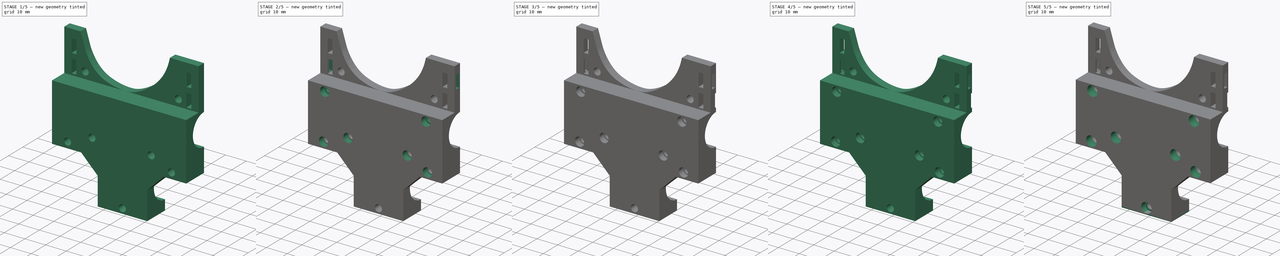
[diagram: build sequence overview — one tinted view per stage of 5, left to right]
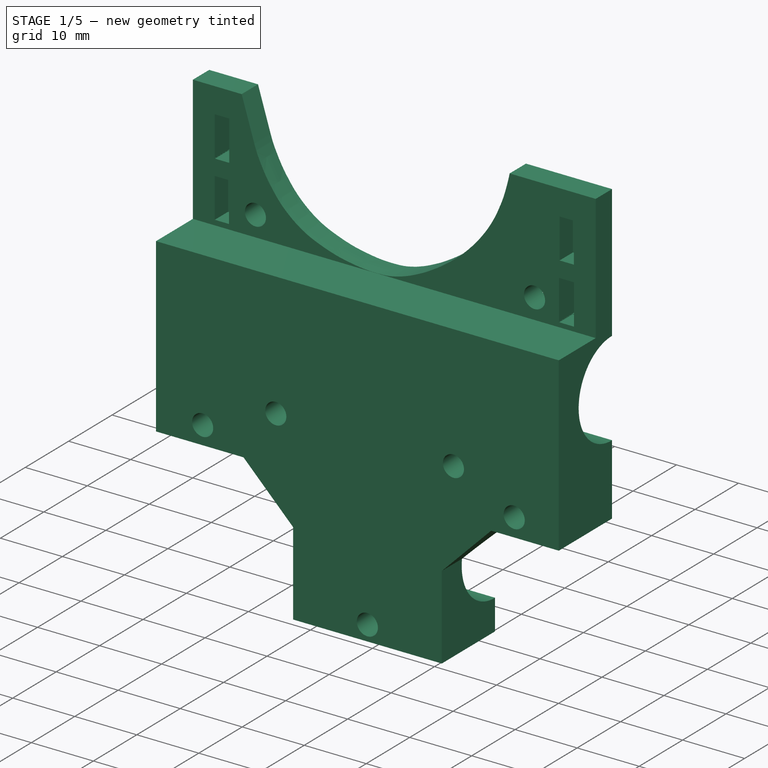
[diagram: stage 1 of 5 — iso view after this stage's code; geometry added in this stage tinted green]
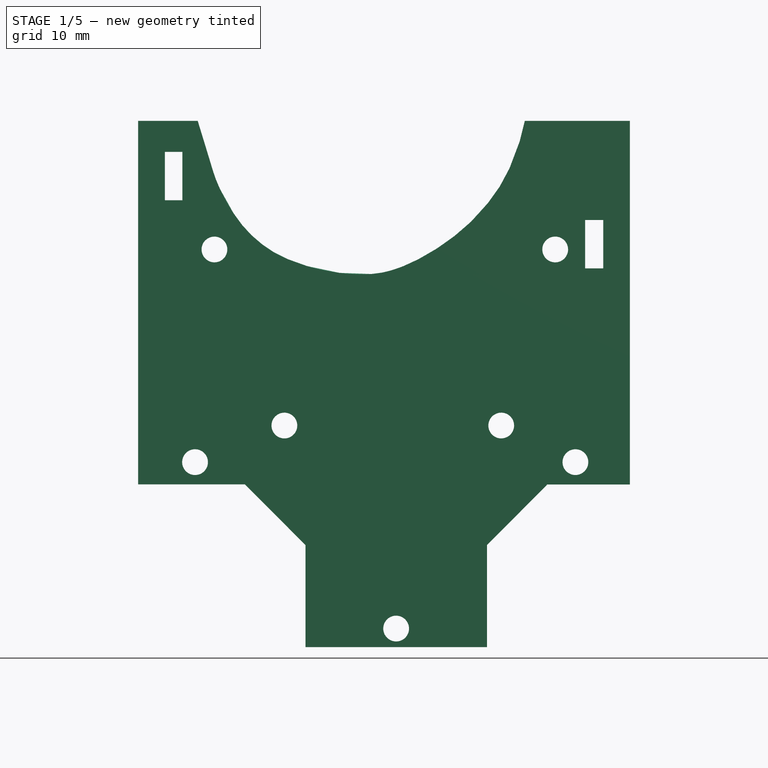
[diagram: stage 1 of 5 — front view after this stage's code; geometry added in this stage tinted green]
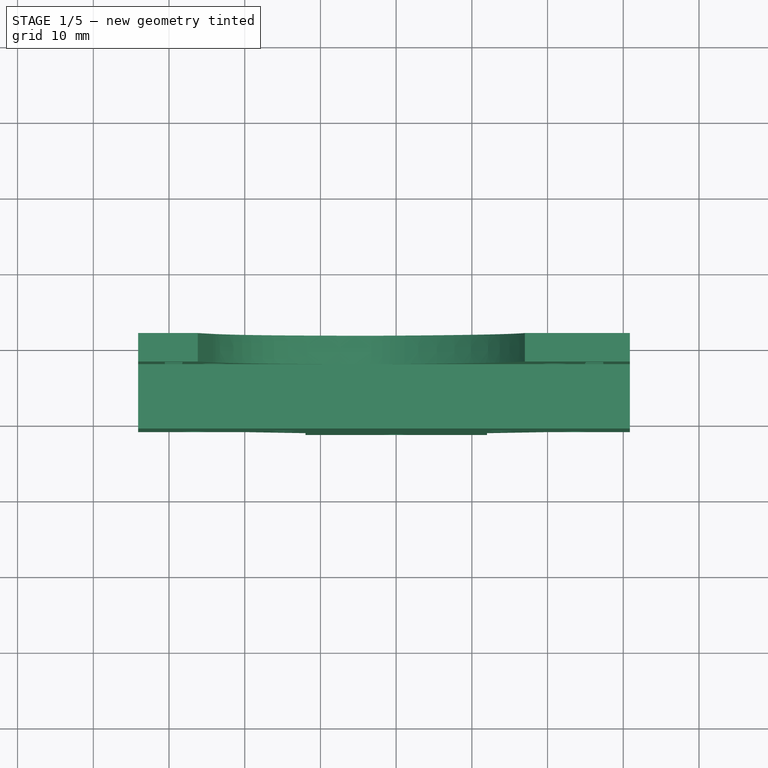
[diagram: stage 1 of 5 — top view after this stage's code; geometry added in this stage tinted green]
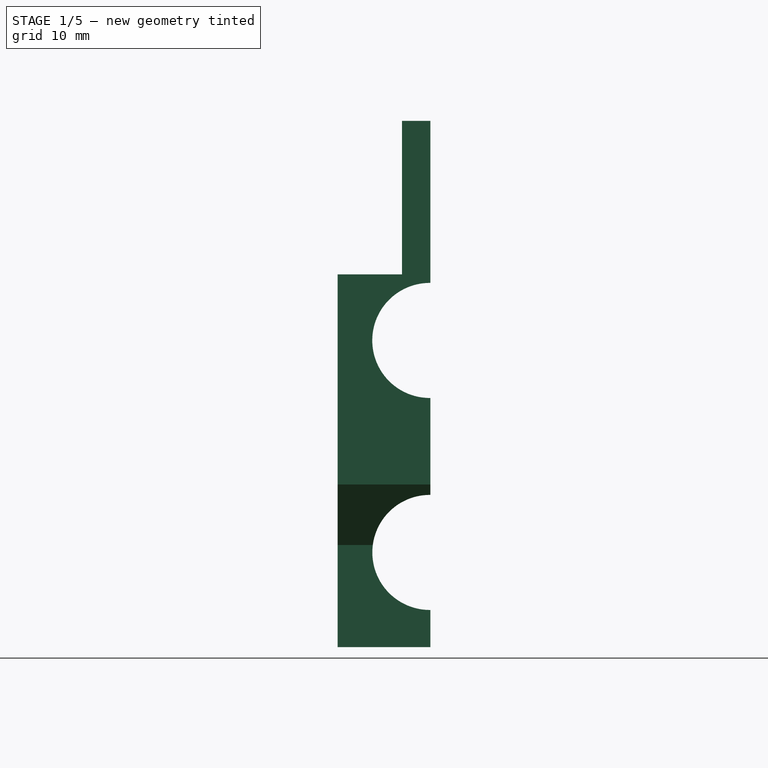
[diagram: stage 1 of 5 — right view after this stage's code; geometry added in this stage tinted green]
FCSTD DOCUMENT  (FreeCAD 0.21R33668 +26 (Git))
Label: x_carriage_front
License: All rights reserved
LicenseURL: http://en.wikipedia.org/wiki/All_rights_reserved
objects: PartDesign::Pocket×14, Sketcher::SketchObject×10, PartDesign::Pad×4, PartDesign::Hole×3, PartDesign::Body×1
note: 53 computed .brp shape members not serialized (recipe doc carries the construction recipe); baked Part::Feature solids carry a one-line shape summary decoded from their .brp

FEATURE [Sketcher::SketchObject] Sketch
  FullyConstrained = false
  Placement = pos=(0,18.82,0) rot=(1,0,0;1.5708rad)
  sketch-geometry (105):
    g0: LineSegment StartX=-26.2136 StartY=121.004 StartZ=0 EndX=-34.0763 EndY=121.004 EndZ=0
    g1: LineSegment StartX=-34.0763 StartY=121.004 StartZ=0 EndX=-34.0763 EndY=72.9726 EndZ=0
    g2: LineSegment StartX=-34.0763 StartY=72.9726 StartZ=0 EndX=-19.9689 EndY=72.9726 EndZ=0
    g3: LineSegment StartX=-19.9689 StartY=72.9726 StartZ=0 EndX=-11.9657 EndY=64.9352 EndZ=0
    g4: LineSegment StartX=-11.9657 StartY=64.9352 StartZ=0 EndX=-11.9657 EndY=51.4576 EndZ=0
    g5: LineSegment StartX=-11.9657 StartY=51.4576 StartZ=0 EndX=12.0035 EndY=51.4576 EndZ=0
    g6: LineSegment StartX=12.0035 StartY=51.4576 StartZ=0 EndX=12.0035 EndY=64.9658 EndZ=0
    g7: LineSegment StartX=12.0035 StartY=64.9658 StartZ=0 EndX=19.9662 EndY=72.9654 EndZ=0
    g8: LineSegment StartX=19.9662 StartY=72.9654 StartZ=0 EndX=30.8698 EndY=72.9654 EndZ=0
    g9: LineSegment StartX=30.8698 StartY=72.9654 StartZ=0 EndX=30.8698 EndY=121 EndZ=0
    g10: LineSegment StartX=30.8698 StartY=121 StartZ=0 EndX=16.9998 EndY=121 EndZ=0
    g11-g51: Circle x41 (B-spline internal-alignment scaffolding for g52; pole/knot coordinates omitted)
    g52: BSplineCurve PolesCount=41 KnotsCount=39 Degree=3 IsPeriodic=0
    g53-g91: GeomPoint x39 (B-spline internal-alignment scaffolding for g52; pole/knot coordinates omitted)
    g92: LineSegment StartX=-30.5492 StartY=116.899 StartZ=0 EndX=-28.2332 EndY=116.899 EndZ=0
    g93: LineSegment StartX=-28.2332 StartY=116.899 StartZ=0 EndX=-28.2332 EndY=110.5 EndZ=0
    g94: LineSegment StartX=-28.2332 StartY=110.5 StartZ=0 EndX=-30.5492 EndY=110.5 EndZ=0
    g95: LineSegment StartX=-30.5492 StartY=110.5 StartZ=0 EndX=-30.5492 EndY=116.899 EndZ=0
    g96: LineSegment StartX=24.9558 StartY=107.899 StartZ=0 EndX=27.3482 EndY=107.899 EndZ=0
    g97: LineSegment StartX=27.3482 StartY=107.899 StartZ=0 EndX=27.3482 EndY=101.5 EndZ=0
    g98: LineSegment StartX=27.3482 StartY=101.5 StartZ=0 EndX=24.9558 EndY=101.5 EndZ=0
    g99: LineSegment StartX=24.9558 StartY=101.5 StartZ=0 EndX=24.9558 EndY=107.899 EndZ=0
    g100: Circle CenterX=-23.9991 CenterY=104 CenterZ=0 NormalX=0 NormalY=0 NormalZ=1 AngleXU=0 Radius=1.69965
    g101: Circle CenterX=21.0085 CenterY=104 CenterZ=0 NormalX=0 NormalY=0 NormalZ=1 AngleXU=0 Radius=1.70233
    g102: Circle CenterX=-14.7609 CenterY=80.7457 CenterZ=0 NormalX=0 NormalY=0 NormalZ=1 AngleXU=0 Radius=1.70035
    g103: Circle CenterX=13.8791 CenterY=80.7452 CenterZ=0 NormalX=0 NormalY=0 NormalZ=1 AngleXU=0 Radius=1.69891
    g104: Circle CenterX=-0.000556 CenterY=53.9298 CenterZ=0 NormalX=0 NormalY=0 NormalZ=1 AngleXU=0 Radius=1.70178
  constraints (41):
    c: Horizontal(g0)
    c: Coincident(g0,g1)
    c: Vertical(g1)
    c: Coincident(g1,g2)
    c: Horizontal(g2)
    c: Coincident(g2,g3)
    c: Coincident(g3,g4)
    c: Vertical(g4)
    c: Coincident(g4,g5)
    c: Horizontal(g5)
    c: Coincident(g5,g6)
    c: Vertical(g6)
    c: Coincident(g6,g7)
    c: Coincident(g7,g8)
    c: Horizontal(g8)
    c: Coincident(g8,g9)
    c: Vertical(g9)
    c: Coincident(g9,g10)
    c: Horizontal(g10)
    c: Weight(g11) = 1
    c: Coincident(g52,g10)
    c: Equal(g11, g12-g51) x40
    c: Coincident(g52,g0)
    c: InternalAlignment(g11-g51 -> g52) x41
    c: InternalAlignment(g53-g91 -> g52) x39
    c: Coincident(g92,g93)
    c: Coincident(g93,g94)
    c: Coincident(g94,g95)
    c: Coincident(g95,g92)
    c: Horizontal(g92)
    c: Horizontal(g94)
    c: Vertical(g93)
    c: Vertical(g95)
    c: Coincident(g96,g97)
    c: Coincident(g97,g98)
    c: Coincident(g98,g99)
    c: Coincident(g99,g96)
    c: Horizontal(g96)
    c: Horizontal(g98)
    c: Vertical(g97)
    c: Vertical(g99)
FEATURE [Sketcher::SketchObject] Sketch001
  FullyConstrained = false
  Placement = pos=(0,0,0) rot=(0.57735,0.57735,0.57735;2.0944rad)
  sketch-geometry (14):
    g0: LineSegment StartX=31.0693 StartY=120.989 StartZ=0 EndX=27.3154 EndY=120.989 EndZ=0
    g1: LineSegment StartX=27.3154 StartY=120.989 StartZ=0 EndX=27.3154 EndY=100.705 EndZ=0
    g2: LineSegment StartX=27.3154 StartY=100.705 StartZ=0 EndX=18.8181 EndY=100.705 EndZ=0
    g3: LineSegment StartX=18.8181 StartY=100.705 StartZ=0 EndX=18.8181 EndY=51.4755 EndZ=0
    g4: LineSegment StartX=18.8181 StartY=51.4755 StartZ=0 EndX=31.0687 EndY=51.4755 EndZ=0
    g5: LineSegment StartX=31.0687 StartY=51.4755 StartZ=0 EndX=31.0687 EndY=56.3864 EndZ=0
    g6: LineSegment StartX=31.0691 StartY=71.5852 StartZ=0 EndX=31.0691 EndY=84.3861 EndZ=0
    g7: LineSegment StartX=31.0693 StartY=99.585 StartZ=0 EndX=31.0693 EndY=120.989 EndZ=0
    g8: ArcOfCircle CenterX=30.9931 CenterY=91.9855 CenterZ=0 NormalX=0 NormalY=0 NormalZ=1 AngleXU=0 Radius=7.59984 StartAngle=1.56077 EndAngle=4.7224
    g9: ArcOfCircle CenterX=31.0006 CenterY=63.9858 CenterZ=0 NormalX=0 NormalY=0 NormalZ=1 AngleXU=0 Radius=7.59968 StartAngle=1.56178 EndAngle=4.72135
    g10: LineSegment StartX=6.55958 StartY=131.46 StartZ=0 EndX=47.2407 EndY=131.46 EndZ=0
    g11: LineSegment StartX=47.2407 StartY=131.46 StartZ=0 EndX=47.2407 EndY=40.93 EndZ=0
    g12: LineSegment StartX=47.2407 StartY=40.93 StartZ=0 EndX=6.55958 EndY=40.93 EndZ=0
    g13: LineSegment StartX=6.55958 StartY=40.93 StartZ=0 EndX=6.55958 EndY=131.46 EndZ=0
  constraints (26):
    c: Horizontal(g0)
    c: Coincident(g0,g1)
    c: Vertical(g1)
    c: Coincident(g1,g2)
    c: Horizontal(g2)
    c: Coincident(g2,g3)
    c: Vertical(g3)
    c: Coincident(g3,g4)
    c: Horizontal(g4)
    c: Coincident(g4,g5)
    c: Vertical(g5)
    c: Vertical(g6)
    c: Coincident(g7,g0)
    c: Vertical(g7)
    c: Coincident(g8,g7)
    c: Coincident(g8,g6)
    c: Coincident(g9,g6)
    c: Coincident(g9,g5)
    c: Coincident(g10,g11)
    c: Coincident(g11,g12)
    c: Coincident(g12,g13)
    c: Coincident(g13,g10)
    c: Horizontal(g10)
    c: Horizontal(g12)
    c: Vertical(g11)
    c: Vertical(g13)
FEATURE [PartDesign::Pad] Pad
  Direction = (0,-1,0)
  Length = 12.25
  Length2 = 10
  Placement = pos=(0,18.82,0) rot=(1,0,0;1.5708rad)
  Profile = -> Sketch
  ReferenceAxis = -> Sketch [N_Axis]
  Reversed = true
  Type = 0
FEATURE [PartDesign::Pocket] Pocket
  BaseFeature = -> Pad
  Direction = (-1,0,0)
  Length = 49
  Length2 = 55
  Placement = pos=(0,18.82,0) rot=(1,0,0;1.5708rad)
  Profile = -> Sketch001
  ReferenceAxis = -> Sketch001 [N_Axis]
  Type = 4
FEATURE [Sketcher::SketchObject] Sketch002
  AttachmentOffset = pos=(0,0,-27.2) rot=(0,0,1;0rad)
  FullyConstrained = false
  MapMode = 5
  Placement = pos=(0,27.2,6e-15) rot=(1,0,0;1.5708rad)
  Support = -> [XZ_Plane]
  sketch-geometry (16):
    g0: LineSegment StartX=-30.5492 StartY=107.902 StartZ=0 EndX=-28.2496 EndY=107.902 EndZ=0
    g1: LineSegment StartX=-30.5492 StartY=107.902 StartZ=0 EndX=-30.5492 EndY=101.516 EndZ=0
    g2: LineSegment StartX=-28.2496 StartY=107.902 StartZ=0 EndX=-28.2496 EndY=101.516 EndZ=0
    g3: LineSegment StartX=-28.2496 StartY=101.516 StartZ=0 EndX=-30.5492 EndY=101.516 EndZ=0
    g4: LineSegment StartX=27.3612 StartY=110.461 StartZ=0 EndX=25.0484 EndY=110.461 EndZ=0
    g5: LineSegment StartX=25.0484 StartY=110.461 StartZ=0 EndX=25.0484 EndY=116.867 EndZ=0
    g6: LineSegment StartX=25.0484 StartY=116.867 StartZ=0 EndX=27.3612 EndY=116.867 EndZ=0
    g7: LineSegment StartX=27.3612 StartY=116.867 StartZ=0 EndX=27.3612 EndY=110.461 EndZ=0
    g8: LineSegment StartX=-30.5278 StartY=116.838 StartZ=0 EndX=-28.2176 EndY=116.838 EndZ=0
    g9: LineSegment StartX=-28.2176 StartY=116.838 StartZ=0 EndX=-28.2176 EndY=110.435 EndZ=0
    g10: LineSegment StartX=-28.2176 StartY=110.435 StartZ=0 EndX=-30.5278 EndY=110.435 EndZ=0
    g11: LineSegment StartX=-30.5278 StartY=110.435 StartZ=0 EndX=-30.5278 EndY=116.838 EndZ=0
    g12: LineSegment StartX=24.9831 StartY=107.838 StartZ=0 EndX=27.3658 EndY=107.838 EndZ=0
    g13: LineSegment StartX=27.3658 StartY=107.838 StartZ=0 EndX=27.3658 EndY=101.433 EndZ=0
    g14: LineSegment StartX=27.3658 StartY=101.433 StartZ=0 EndX=24.9831 EndY=101.433 EndZ=0
    g15: LineSegment StartX=24.9831 StartY=101.433 StartZ=0 EndX=24.9831 EndY=107.838 EndZ=0
  constraints (30):
    c: Horizontal(g0)
    c: Vertical(g1)
    c: Coincident(g2,g0)
    c: Vertical(g2)
    c: Coincident(g3,g2)
    c: Coincident(g3,g1)
    c: Horizontal(g3)
    c: Horizontal(g4)
    c: Coincident(g5,g4)
    c: Vertical(g5)
    c: Coincident(g6,g5)
    c: Horizontal(g6)
    c: Coincident(g7,g6)
    c: Vertical(g7)
    c: Coincident(g8,g9)
    c: Coincident(g9,g10)
    c: Coincident(g10,g11)
    c: Coincident(g11,g8)
    c: Horizontal(g8)
    c: Horizontal(g10)
    c: Vertical(g9)
    c: Vertical(g11)
    c: Coincident(g12,g13)
    c: Coincident(g13,g14)
    c: Coincident(g14,g15)
    c: Coincident(g15,g12)
    c: Horizontal(g12)
    c: Horizontal(g14)
    c: Vertical(g13)
    c: Vertical(g15)
FEATURE [PartDesign::Pocket] Pocket001
  BaseFeature = -> Pocket
  Direction = (0,1,-2e-16)
  Length = 3.18
  Length2 = 5
  Placement = pos=(0,18.82,0) rot=(1,0,0;1.5708rad)
  Profile = -> Sketch002
  ReferenceAxis = -> Sketch002 [N_Axis]
  Type = 0
FEATURE [Sketcher::SketchObject] Sketch003
  FullyConstrained = false
  MapMode = 5
  Placement = pos=(0,0,0) rot=(1,0,0;1.5708rad)
  Support = -> [XZ_Plane]
  sketch-geometry (2):
    g0: Circle CenterX=-26.5605 CenterY=75.9115 CenterZ=0 NormalX=0 NormalY=0 NormalZ=1 AngleXU=0 Radius=1.7027
    g1: Circle CenterX=23.6788 CenterY=75.9121 CenterZ=0 NormalX=0 NormalY=0 NormalZ=1 AngleXU=0 Radius=1.702
FEATURE [Sketcher::SketchObject] Sketch004
  AttachmentOffset = pos=(0,0,-18.7) rot=(0,0,1;0rad)
  FullyConstrained = false
  MapMode = 5
  Placement = pos=(0,18.7,4.2e-15) rot=(1,0,0;1.5708rad)
  Support = -> [XZ_Plane]
  sketch-geometry (6):
    g0: Circle CenterX=-26.0547 CenterY=97.8918 CenterZ=0 NormalX=0 NormalY=0 NormalZ=1 AngleXU=0 Radius=1.69876
    g1: Circle CenterX=22.8837 CenterY=97.8847 CenterZ=0 NormalX=0 NormalY=0 NormalZ=1 AngleXU=0 Radius=1.69918
    g2: Circle CenterX=-26.5605 CenterY=75.9115 CenterZ=0 NormalX=0 NormalY=0 NormalZ=1 AngleXU=0 Radius=1.7027
    g3: Circle CenterX=23.6788 CenterY=75.9121 CenterZ=0 NormalX=0 NormalY=0 NormalZ=1 AngleXU=0 Radius=1.702
    g4: Circle CenterX=-14.7391 CenterY=80.6766 CenterZ=0 NormalX=0 NormalY=0 NormalZ=1 AngleXU=0 Radius=1.69911
    g5: Circle CenterX=13.8914 CenterY=80.6765 CenterZ=0 NormalX=0 NormalY=0 NormalZ=1 AngleXU=0 Radius=1.69747
FEATURE [PartDesign::Pocket] Pocket002
  BaseFeature = -> Pocket001
  Direction = (0,1,-2e-16)
  Length = 5
  Length2 = 5
  Placement = pos=(0,18.82,0) rot=(1,0,0;1.5708rad)
  Profile = -> Sketch003
  ReferenceAxis = -> Sketch003 [N_Axis]
  Type = 1
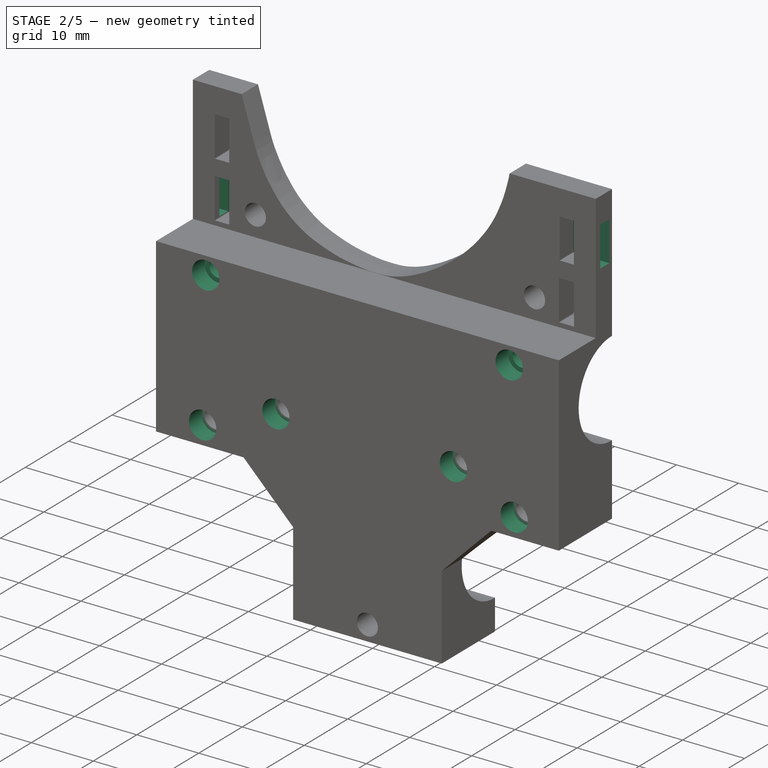
[diagram: stage 2 of 5 — iso view after this stage's code; geometry added in this stage tinted green]
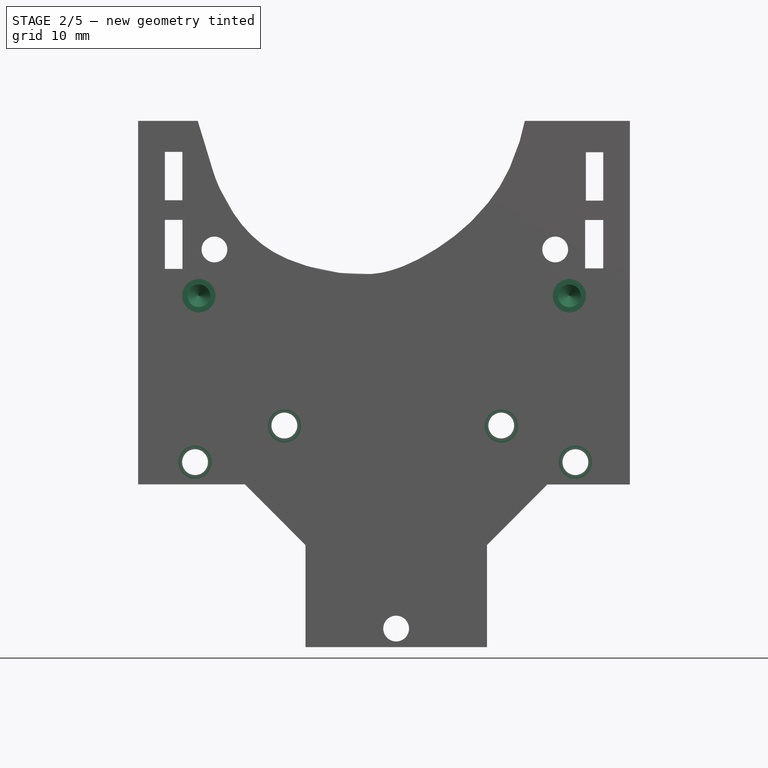
[diagram: stage 2 of 5 — front view after this stage's code; geometry added in this stage tinted green]
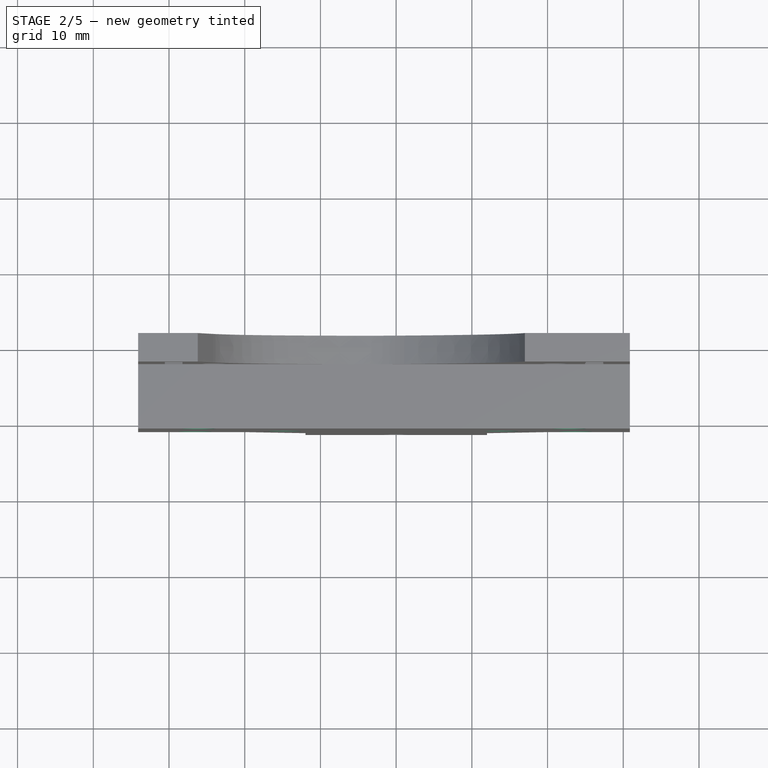
[diagram: stage 2 of 5 — top view after this stage's code; geometry added in this stage tinted green]
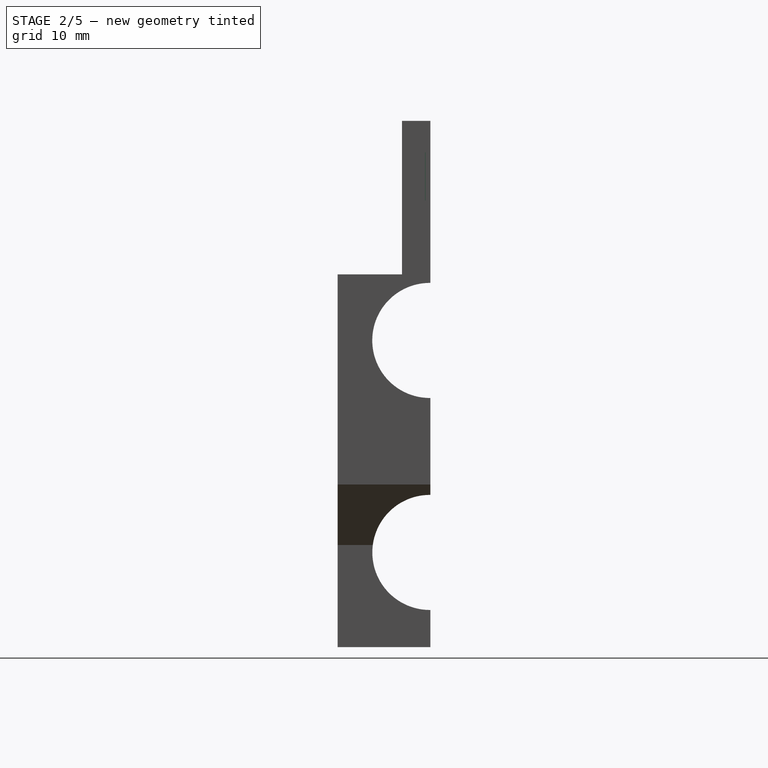
[diagram: stage 2 of 5 — right view after this stage's code; geometry added in this stage tinted green]
FEATURE [PartDesign::Hole] Hole
  BaseFeature = -> Pocket002
  CustomThreadClearance = 0
  Depth = 5
  DepthType = 0
  Diameter = 3
  DrillForDepth = false
  DrillPoint = 1
  DrillPointAngle = 118
  HoleCutCountersinkAngle = 90
  HoleCutCustomValues = false
  HoleCutDepth = 3
  HoleCutDiameter = 4.4
  HoleCutType = 1
  ModelThread = false
  Placement = pos=(0,18.82,0) rot=(1,0,0;1.5708rad)
  Profile = -> Sketch004
  Tapered = false
  TaperedAngle = 90
  ThreadClass = 0
  ThreadDepth = 5
  ThreadDepthType = 0
  ThreadDirection = 0
  ThreadFit = 0
  ThreadSize = 0
  ThreadType = 0
  Threaded = false
  UseCustomThreadClearance = false
FEATURE [Sketcher::SketchObject] Sketch005
  FullyConstrained = false
  MapMode = 5
  Placement = pos=(0,0,0) rot=(1,0,0;1.5708rad)
  Support = -> [XZ_Plane]
  sketch-geometry (8):
    g0: LineSegment StartX=25.0582 StartY=116.841 StartZ=0 EndX=27.3593 EndY=116.841 EndZ=0
    g1: LineSegment StartX=27.3593 StartY=116.841 StartZ=0 EndX=27.3593 EndY=110.46 EndZ=0
    g2: LineSegment StartX=27.3593 StartY=110.46 StartZ=0 EndX=25.0582 EndY=110.46 EndZ=0
    g3: LineSegment StartX=25.0582 StartY=110.46 StartZ=0 EndX=25.0582 EndY=116.841 EndZ=0
    g4: LineSegment StartX=-30.5377 StartY=107.902 StartZ=0 EndX=-28.2149 EndY=107.902 EndZ=0
    g5: LineSegment StartX=-28.2149 StartY=107.902 StartZ=0 EndX=-28.2149 EndY=101.434 EndZ=0
    g6: LineSegment StartX=-28.2149 StartY=101.434 StartZ=0 EndX=-30.5377 EndY=101.434 EndZ=0
    g7: LineSegment StartX=-30.5377 StartY=101.434 StartZ=0 EndX=-30.5377 EndY=107.902 EndZ=0
  constraints (16):
    c: Coincident(g0,g1)
    c: Coincident(g1,g2)
    c: Coincident(g2,g3)
    c: Coincident(g3,g0)
    c: Horizontal(g0)
    c: Horizontal(g2)
    c: Vertical(g1)
    c: Vertical(g3)
    c: Coincident(g4,g5)
    c: Coincident(g5,g6)
    c: Coincident(g6,g7)
    c: Coincident(g7,g4)
    c: Horizontal(g4)
    c: Horizontal(g6)
    c: Vertical(g5)
    c: Vertical(g7)
FEATURE [PartDesign::Pocket] Pocket003
  BaseFeature = -> Hole
  Direction = (0,1,-2e-16)
  Length = 5
  Length2 = 5
  Placement = pos=(0,18.82,0) rot=(1,0,0;1.5708rad)
  Profile = -> Sketch005
  ReferenceAxis = -> Sketch005 [N_Axis]
  Type = 1
FEATURE [Sketcher::SketchObject] Sketch006
  AttachmentOffset = pos=(0,0,27) rot=(0,0,1;0rad)
  FullyConstrained = false
  MapMode = 5
  Placement = pos=(27,-6e-15,6e-15) rot=(0.57735,0.57735,0.57735;2.0944rad)
  Support = -> [YZ_Plane]
  sketch-geometry (4):
    g0: LineSegment StartX=28.3614 StartY=116.833 StartZ=0 EndX=30.4328 EndY=116.833 EndZ=0
    g1: LineSegment StartX=30.4328 StartY=116.833 StartZ=0 EndX=30.4328 EndY=110.435 EndZ=0
    g2: LineSegment StartX=30.4328 StartY=110.435 StartZ=0 EndX=28.3614 EndY=110.435 EndZ=0
    g3: LineSegment StartX=28.3614 StartY=110.435 StartZ=0 EndX=28.3614 EndY=116.833 EndZ=0
  constraints (8):
    c: Coincident(g0,g1)
    c: Coincident(g1,g2)
    c: Coincident(g2,g3)
    c: Coincident(g3,g0)
    c: Horizontal(g0)
    c: Horizontal(g2)
    c: Vertical(g1)
    c: Vertical(g3)
FEATURE [PartDesign::Pocket] Pocket004
  BaseFeature = -> Pocket003
  Direction = (-1,2e-16,-3e-16)
  Length = 15
  Length2 = 5
  Placement = pos=(0,18.82,0) rot=(1,0,0;1.5708rad)
  Profile = -> Sketch006
  ReferenceAxis = -> Sketch006 [N_Axis]
  Reversed = true
  Type = 0
FEATURE [Sketcher::SketchObject] Sketch007
  AttachmentOffset = pos=(0,0,-29) rot=(0,0,1;0rad)
  FullyConstrained = false
  MapMode = 5
  Placement = pos=(-29,6.4e-15,-6.4e-15) rot=(0.57735,0.57735,0.57735;2.0944rad)
  Support = -> [YZ_Plane]
  sketch-geometry (4):
    g0: LineSegment StartX=30.3635 StartY=107.835 StartZ=0 EndX=30.3635 EndY=101.615 EndZ=0
    g1: LineSegment StartX=28.3718 StartY=107.835 StartZ=0 EndX=28.3718 EndY=101.615 EndZ=0
    g2: LineSegment StartX=30.3635 StartY=101.615 StartZ=0 EndX=28.3718 EndY=101.615 EndZ=0
    g3: LineSegment StartX=30.3635 StartY=107.835 StartZ=0 EndX=28.3718 EndY=107.835 EndZ=0
  constraints (8):
    c: Horizontal(g0,g1)
    c: Vertical(g0)
    c: Vertical(g1)
    c: Horizontal(g1,g0)
    c: Coincident(g2,g0)
    c: Coincident(g2,g1)
    c: Coincident(g3,g0)
    c: Coincident(g3,g1)
FEATURE [PartDesign::Pocket] Pocket005
  BaseFeature = -> Pocket004
  Direction = (-1,2e-16,-3e-16)
  Length = 15
  Length2 = 5
  Placement = pos=(0,18.82,0) rot=(1,0,0;1.5708rad)
  Profile = -> Sketch007
  ReferenceAxis = -> Sketch007 [N_Axis]
  Type = 0
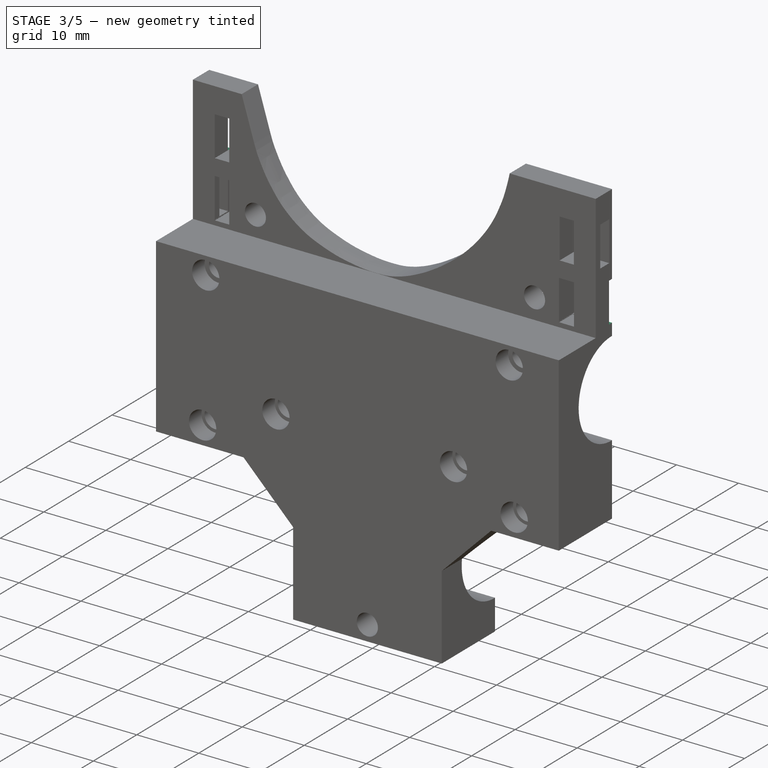
[diagram: stage 3 of 5 — iso view after this stage's code; geometry added in this stage tinted green]
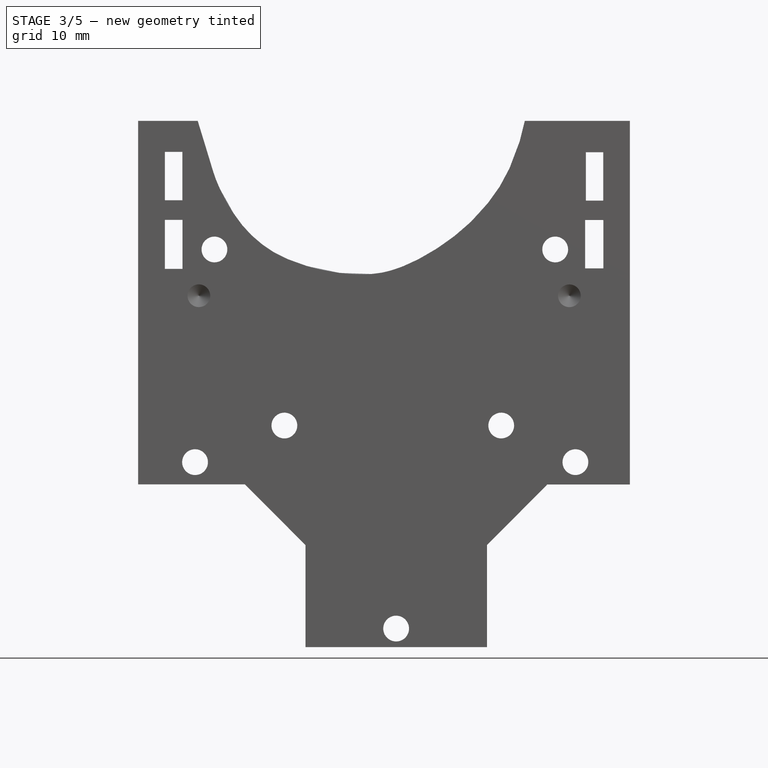
[diagram: stage 3 of 5 — front view after this stage's code; geometry added in this stage tinted green]
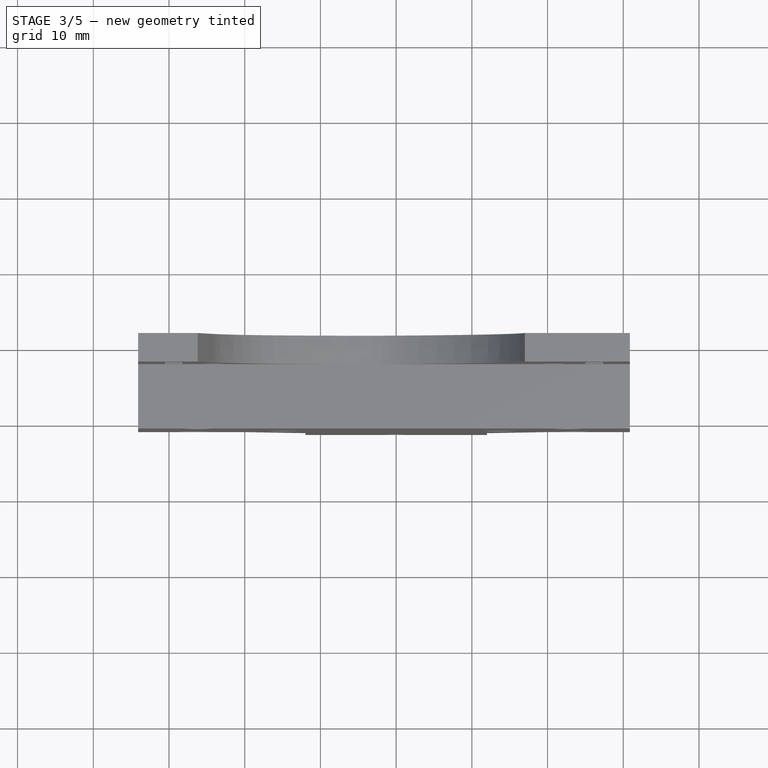
[diagram: stage 3 of 5 — top view after this stage's code; geometry added in this stage tinted green]
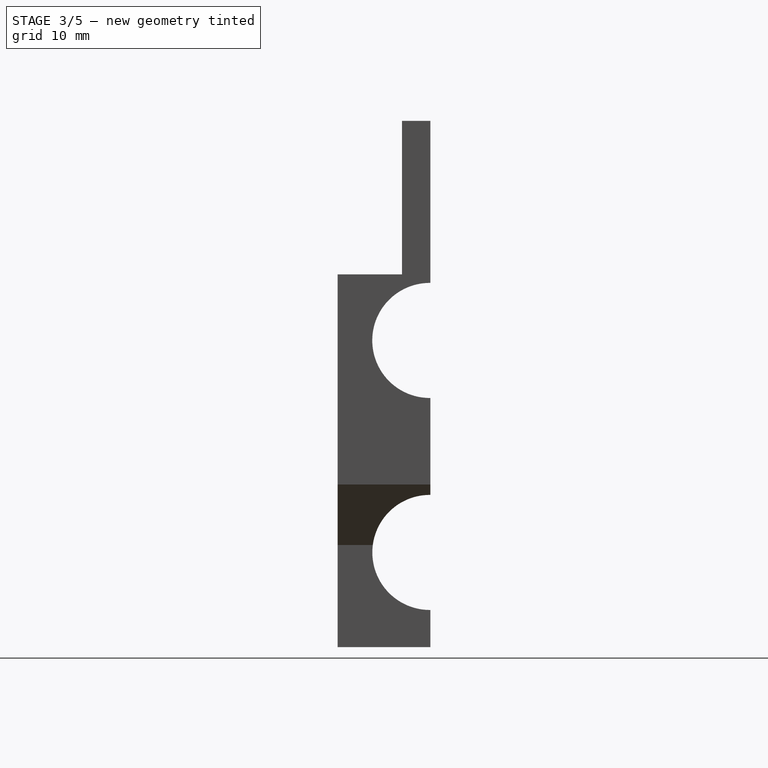
[diagram: stage 3 of 5 — right view after this stage's code; geometry added in this stage tinted green]
FEATURE [Sketcher::SketchObject] Sketch008
  AttachmentOffset = pos=(0,0,-30) rot=(0,0,1;0rad)
  FullyConstrained = false
  MapMode = 5
  Placement = pos=(-30,6.7e-15,-6.7e-15) rot=(0.57735,0.57735,0.57735;2.0944rad)
  Support = -> [YZ_Plane]
  sketch-geometry (4):
    g0: LineSegment StartX=39.9357 StartY=116.833 StartZ=0 EndX=30.3301 EndY=116.833 EndZ=0
    g1: LineSegment StartX=30.3301 StartY=116.833 StartZ=0 EndX=30.3301 EndY=110.5 EndZ=0
    g2: LineSegment StartX=30.3301 StartY=110.5 StartZ=0 EndX=39.9357 EndY=110.5 EndZ=0
    g3: LineSegment StartX=39.9357 StartY=110.5 StartZ=0 EndX=39.9357 EndY=116.833 EndZ=0
  constraints (8):
    c: Coincident(g0,g1)
    c: Coincident(g1,g2)
    c: Coincident(g2,g3)
    c: Coincident(g3,g0)
    c: Horizontal(g0)
    c: Horizontal(g2)
    c: Vertical(g1)
    c: Vertical(g3)
FEATURE [PartDesign::Pad] Pad001
  BaseFeature = -> Pocket005
  Direction = (1,0,0)
  Length = 10
  Length2 = 10
  Placement = pos=(0,18.82,0) rot=(1,0,0;1.5708rad)
  Profile = -> Pocket005 [Face30]
  Type = 2
FEATURE [PartDesign::Pocket] Pocket006
  BaseFeature = -> Pad001
  Direction = (-1,2e-16,-3e-16)
  Length = 5
  Length2 = 5
  Placement = pos=(0,18.82,0) rot=(1,0,0;1.5708rad)
  Profile = -> Sketch008
  ReferenceAxis = -> Sketch008 [N_Axis]
  Type = 0
FEATURE [PartDesign::Pocket] Pocket007
  BaseFeature = -> Pocket006
  Direction = (-3e-16,-1e-16,1)
  Length = 0.066
  Length2 = 5
  Offset = 2
  Placement = pos=(0,18.82,0) rot=(1,0,0;1.5708rad)
  Profile = -> Pocket006 [Face8]
  Type = 0
FEATURE [Sketcher::SketchObject] Sketch009
  AttachmentOffset = pos=(0,0,27) rot=(0,0,1;0rad)
  FullyConstrained = false
  MapMode = 5
  Placement = pos=(27,-6e-15,6e-15) rot=(0.57735,0.57735,0.57735;2.0944rad)
  Support = -> [YZ_Plane]
  sketch-geometry (4):
    g0: LineSegment StartX=31.3408 StartY=107.87 StartZ=0 EndX=30.3788 EndY=107.87 EndZ=0
    g1: LineSegment StartX=30.3788 StartY=107.87 StartZ=0 EndX=30.3788 EndY=101.502 EndZ=0
    g2: LineSegment StartX=30.3788 StartY=101.502 StartZ=0 EndX=31.3408 EndY=101.502 EndZ=0
    g3: LineSegment StartX=31.3408 StartY=101.502 StartZ=0 EndX=31.3408 EndY=107.87 EndZ=0
  constraints (8):
    c: Coincident(g0,g1)
    c: Coincident(g1,g2)
    c: Coincident(g2,g3)
    c: Coincident(g3,g0)
    c: Horizontal(g0)
    c: Horizontal(g2)
    c: Vertical(g1)
    c: Vertical(g3)
FEATURE [PartDesign::Pocket] Pocket008
  BaseFeature = -> Pocket007
  Direction = (-1,2e-16,-3e-16)
  Length = 5
  Length2 = 5
  Placement = pos=(0,18.82,0) rot=(1,0,0;1.5708rad)
  Profile = -> Sketch009
  ReferenceAxis = -> Sketch009 [N_Axis]
  Reversed = true
  Type = 0
FEATURE [PartDesign::Pocket] Pocket009
  BaseFeature = -> Pocket008
  Direction = (-3e-16,-1e-16,1)
  Length = 0.028
  Length2 = 5
  Placement = pos=(0,18.82,0) rot=(1,0,0;1.5708rad)
  Profile = -> Pocket008 [Face13]
  Type = 0
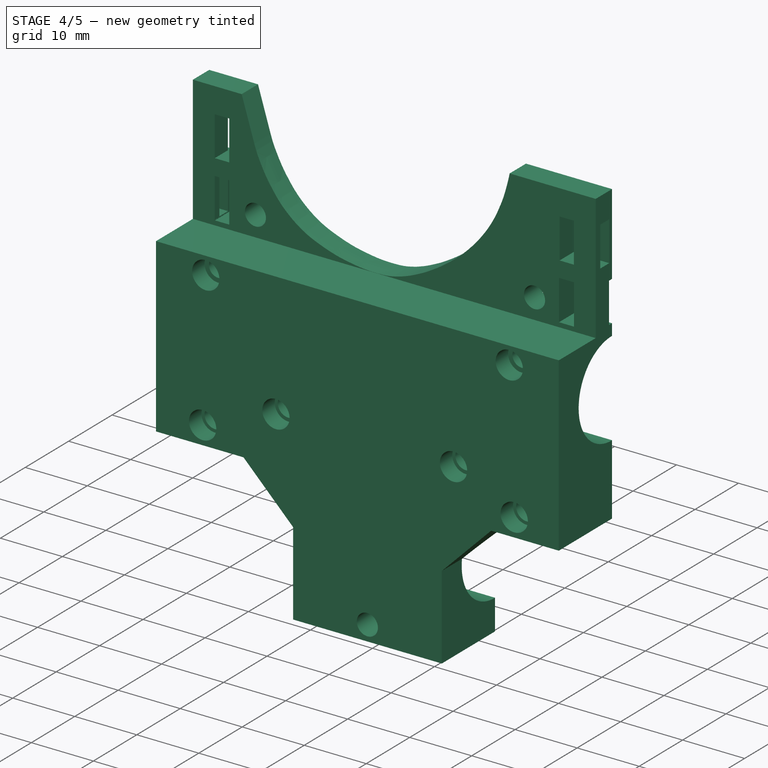
[diagram: stage 4 of 5 — iso view after this stage's code; geometry added in this stage tinted green]
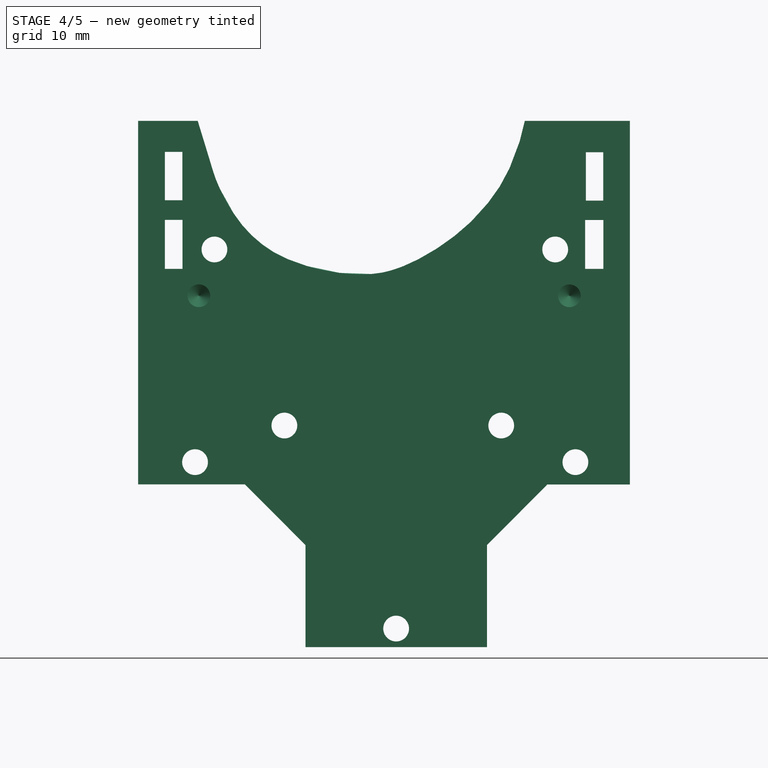
[diagram: stage 4 of 5 — front view after this stage's code; geometry added in this stage tinted green]
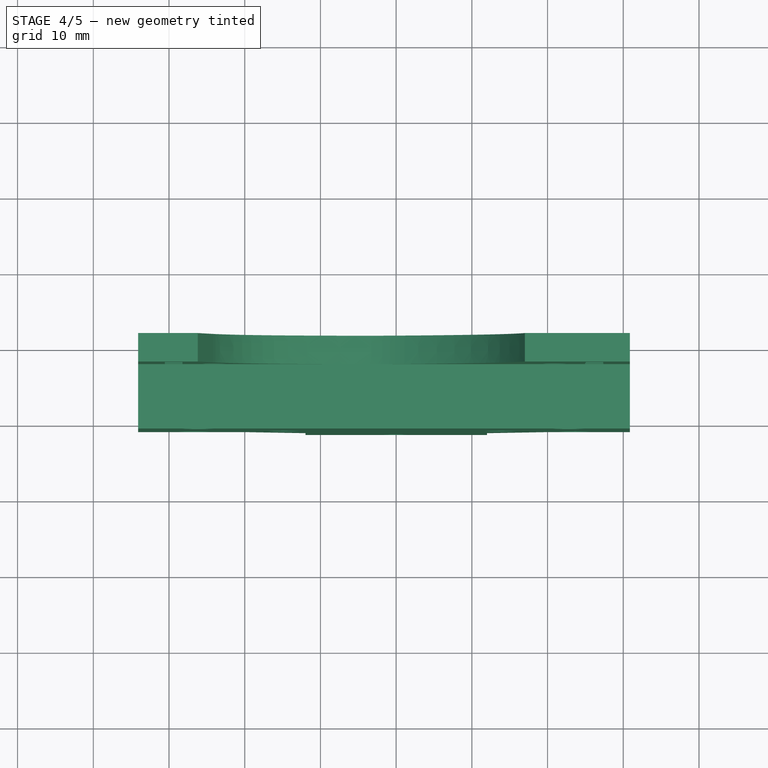
[diagram: stage 4 of 5 — top view after this stage's code; geometry added in this stage tinted green]
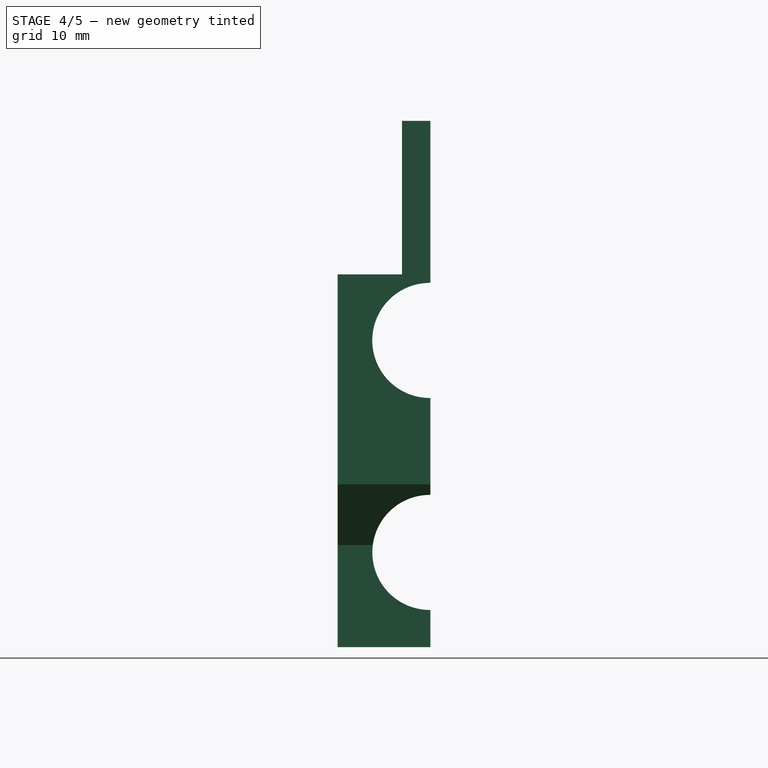
[diagram: stage 4 of 5 — right view after this stage's code; geometry added in this stage tinted green]
FEATURE [PartDesign::Pocket] Pocket010
  BaseFeature = -> Pocket009
  Direction = (1,0,0)
  Length = 0.018
  Length2 = 5
  Placement = pos=(0,18.82,0) rot=(1,0,0;1.5708rad)
  Profile = -> Pocket009 [Face12]
  Type = 0
FEATURE [PartDesign::Pocket] Pocket011
  BaseFeature = -> Pocket010
  Direction = (0,1,3.8e-15)
  Length = 5
  Length2 = 5
  Placement = pos=(0,18.82,0) rot=(1,0,0;1.5708rad)
  Profile = -> Pocket010 [Face61]
  Type = 0
FEATURE [PartDesign::Pocket] Pocket012
  BaseFeature = -> Pocket011
  Direction = (1,0,0)
  Length = 5
  Length2 = 5
  Placement = pos=(0,18.82,0) rot=(1,0,0;1.5708rad)
  Profile = -> Pocket011 [Face8]
  Type = 0
FEATURE [PartDesign::Pocket] Pocket013
  BaseFeature = -> Pocket012
  Direction = (0,5.3e-15,-1)
  Length = 0.067
  Length2 = 5
  Offset = 6
  Placement = pos=(0,18.82,0) rot=(1,0,0;1.5708rad)
  Profile = -> Pocket012 [Face10]
  Type = 0
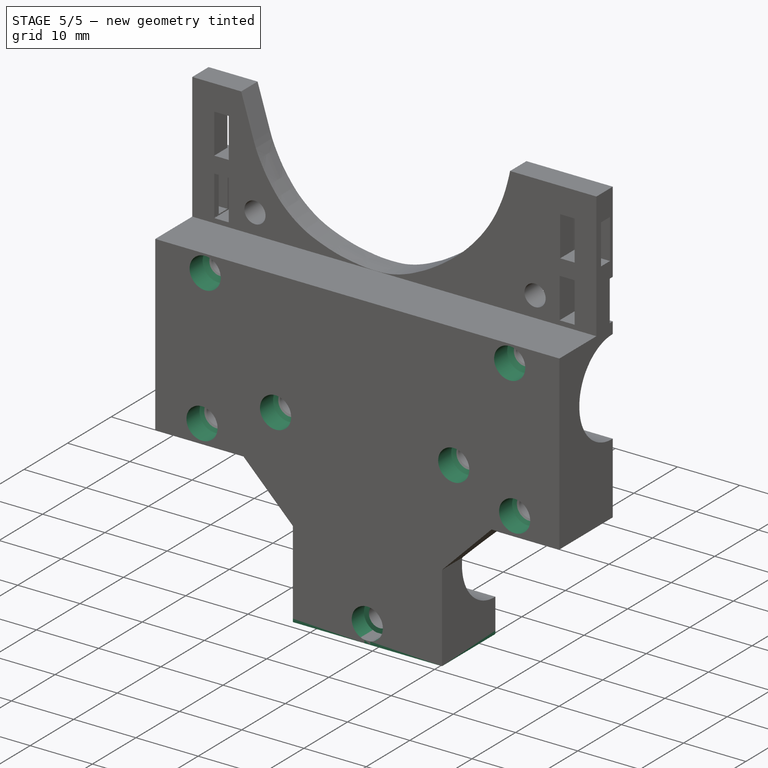
[diagram: stage 5 of 5 — iso view after this stage's code; geometry added in this stage tinted green]
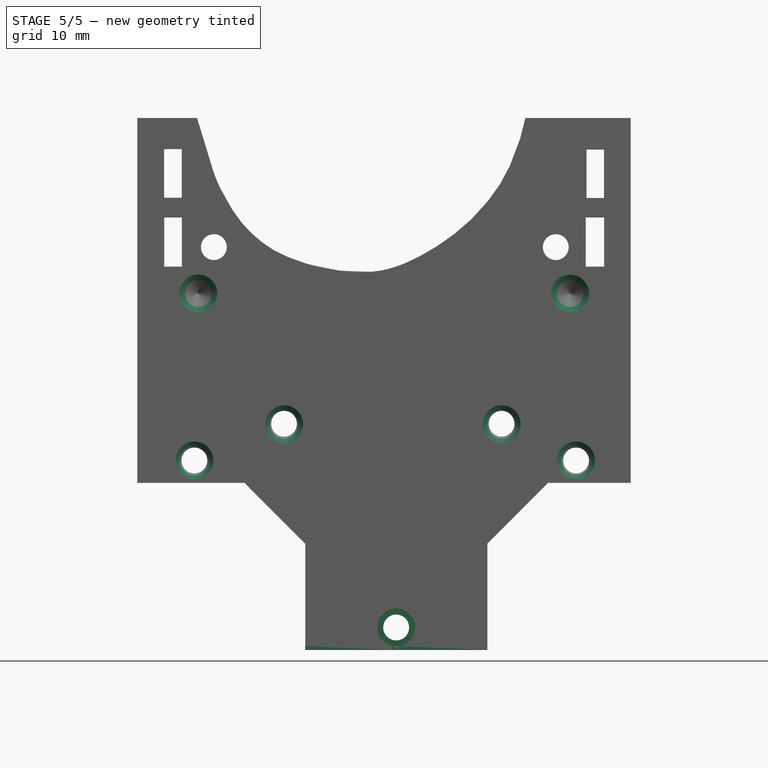
[diagram: stage 5 of 5 — front view after this stage's code; geometry added in this stage tinted green]
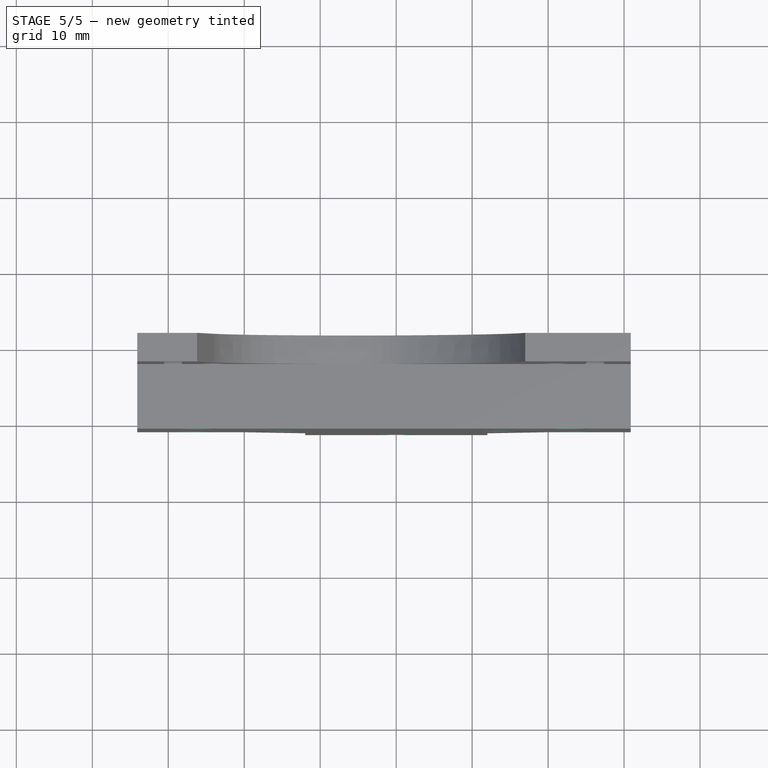
[diagram: stage 5 of 5 — top view after this stage's code; geometry added in this stage tinted green]
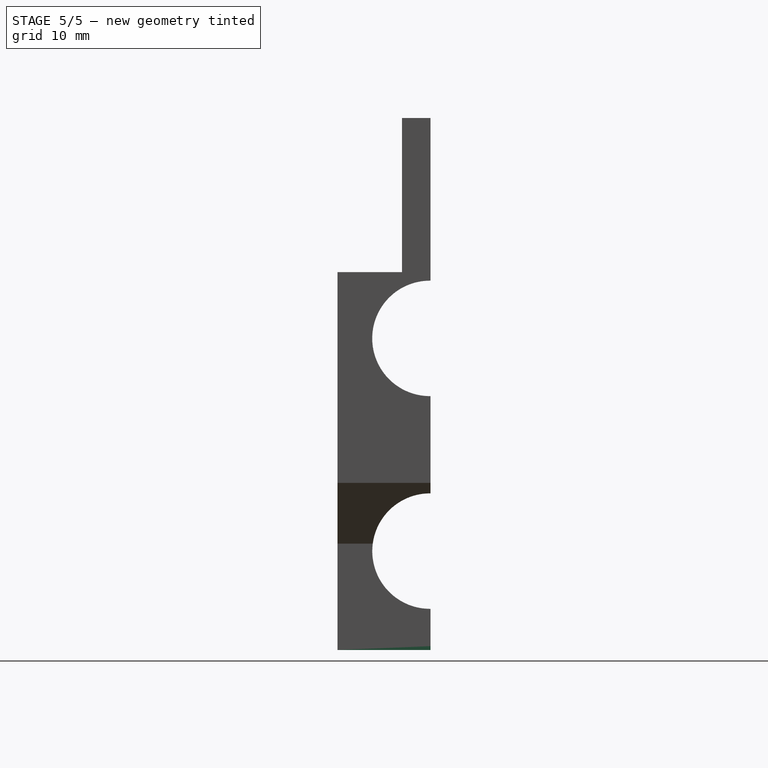
[diagram: stage 5 of 5 — right view after this stage's code; geometry added in this stage tinted green]
FEATURE [PartDesign::Hole] Hole001
  BaseFeature = -> Pocket013
  CustomThreadClearance = 0
  Depth = 25
  DepthType = 0
  Diameter = 3
  DrillForDepth = false
  DrillPoint = 1
  DrillPointAngle = 118
  HoleCutCountersinkAngle = 90
  HoleCutCustomValues = false
  HoleCutDepth = 2.8
  HoleCutDiameter = 5
  HoleCutType = 1
  ModelThread = false
  Placement = pos=(0,18.82,0) rot=(1,0,0;1.5708rad)
  Profile = -> Pocket013 [Edge216]
  Reversed = true
  Tapered = false
  TaperedAngle = 90
  ThreadClass = 0
  ThreadDepth = 25
  ThreadDepthType = 0
  ThreadDirection = 0
  ThreadFit = 0
  ThreadSize = 0
  ThreadType = 0
  Threaded = false
  UseCustomThreadClearance = false
FEATURE [PartDesign::Hole] Hole002
  BaseFeature = -> Hole001
  CustomThreadClearance = 0
  Depth = 3
  DepthType = 0
  Diameter = 5
  DrillForDepth = false
  DrillPoint = 1
  DrillPointAngle = 118
  HoleCutCountersinkAngle = 90
  HoleCutCustomValues = false
  HoleCutDepth = 0
  HoleCutDiameter = 6.1
  HoleCutType = 0
  ModelThread = false
  Placement = pos=(0,18.82,0) rot=(1,0,0;1.5708rad)
  Profile = -> Hole001 [Edge216,Edge217,Edge218,Edge220,Edge221,Edge219]
  Reversed = true
  Tapered = false
  TaperedAngle = 90
  ThreadClass = 0
  ThreadDepth = 3
  ThreadDepthType = 0
  ThreadDirection = 0
  ThreadFit = 0
  ThreadSize = 0
  ThreadType = 0
  Threaded = false
  UseCustomThreadClearance = false
FEATURE [PartDesign::Pad] Pad002
  BaseFeature = -> Hole002
  Direction = (0,-2e-16,-1)
  Length = 0.5
  Length2 = 10
  Placement = pos=(0,18.82,0) rot=(1,0,0;1.5708rad)
  Profile = -> Hole001 [Face79]
  Type = 0
FEATURE [PartDesign::Pad] Pad003
  BaseFeature = -> Pad002
  Direction = (0,-1,3e-16)
  Length = 2.8
  Length2 = 10
  Placement = pos=(0,18.82,0) rot=(1,0,0;1.5708rad)
  Profile = -> Pad002 [Face111]
  Type = 0
FEATURE [PartDesign::Body] Body
  Group = -> [Sketch,Pad,Sketch001,Pocket,Sketch002,Pocket001,Sketch003,Pocket002,Sketch004,Hole,Sketch005,Pocket003,Sketch006,Pocket004,Sketch007,Pocket005,Sketch008,Pad001,Pocket006,Pocket007,Sketch009,Pocket008,Pocket009,Pocket010,Pocket011,Pocket012,Pocket013,Hole001,Hole002,Pad002,Pad003]
  Origin = -> Origin
  Tip = -> Pad003
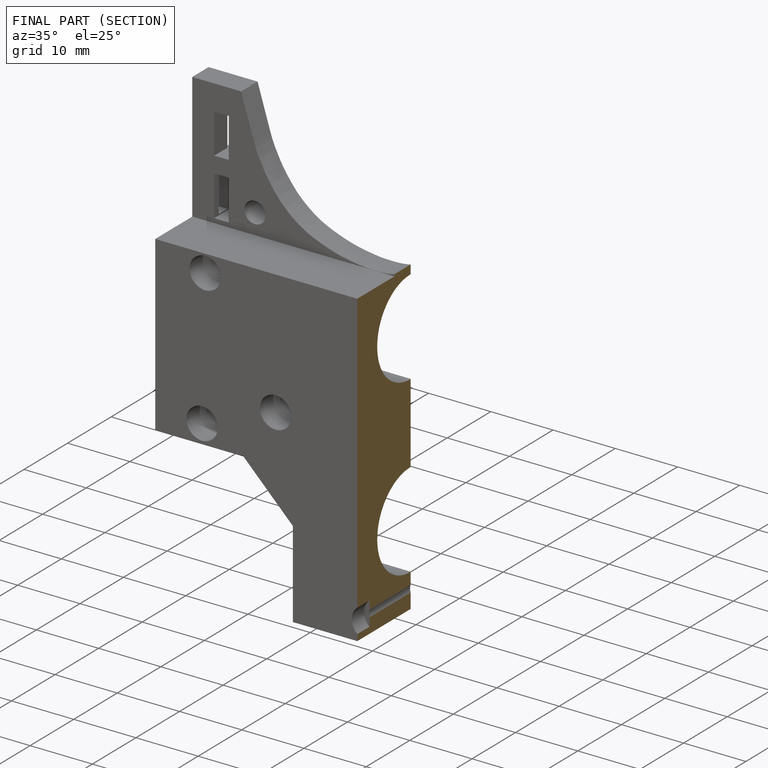
[diagram: finished part — half-section view (interior)]
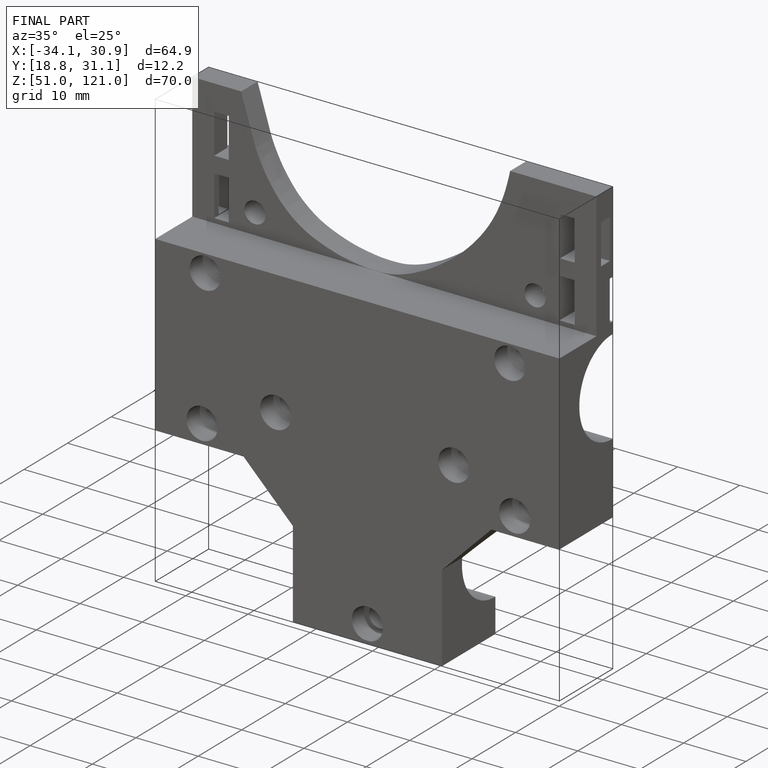
[diagram: finished part — iso view with bounding-box wireframe]
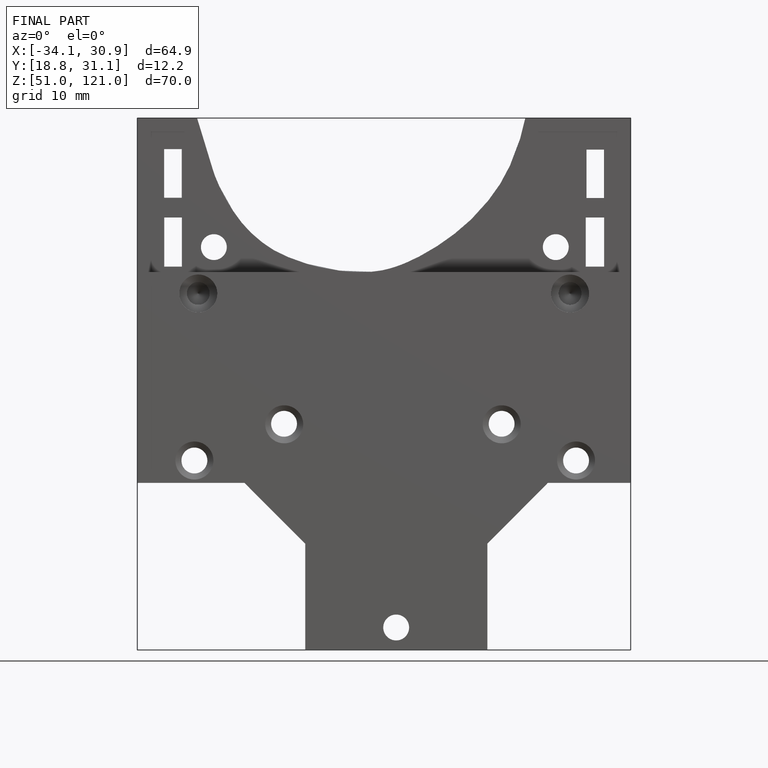
[diagram: finished part — front view with bounding-box wireframe]
